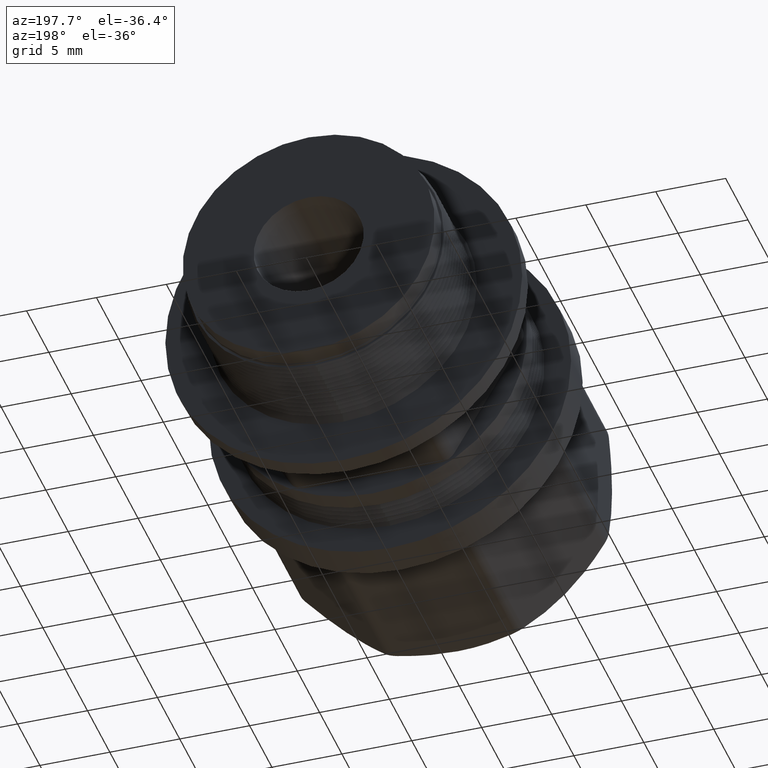
[diagram: clean part render]
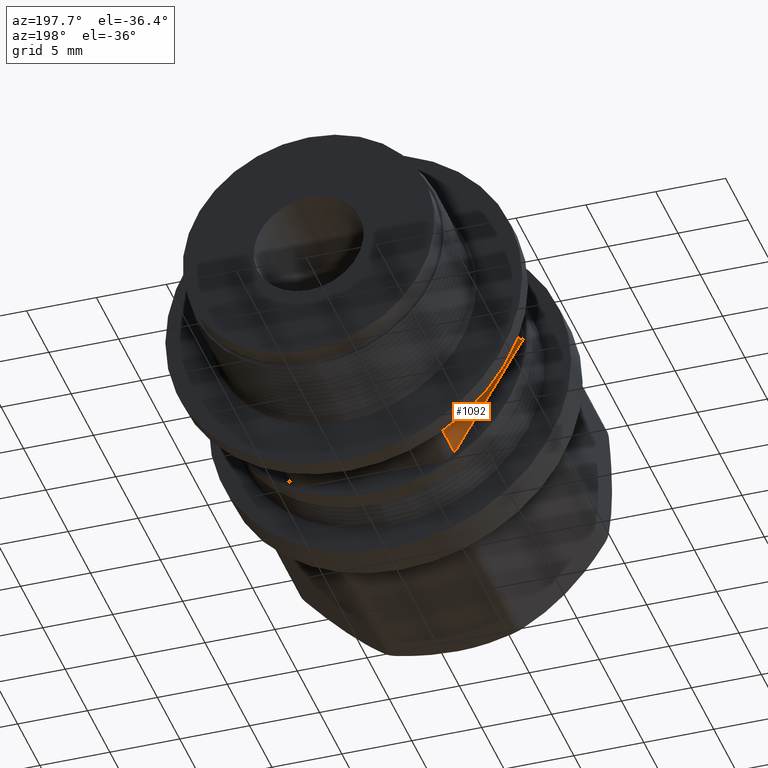
[diagram: same view with one face highlighted and labeled with its STEP entity id]
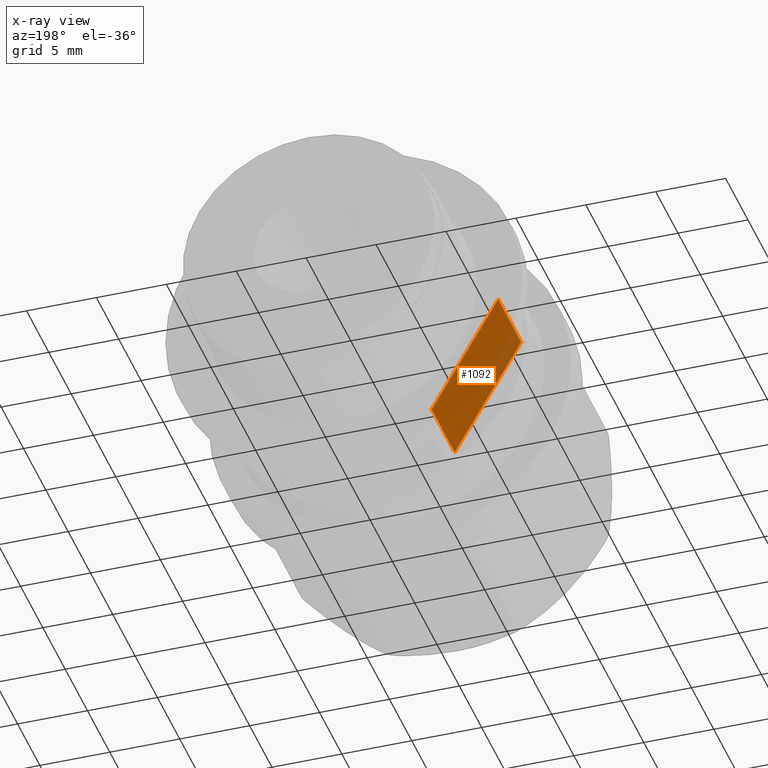
[diagram: x-ray of the same camera — body ghosted, the highlighted face saturated]
A machine part, auxiliary view. The second image highlights one B-rep face of the part: STEP entity #1092.
The next image is the same camera in x-ray: the body ghosted, the highlighted face saturated — about 17% of this face is hidden behind the body in this view.
In plain terms, the highlighted planar face has unit normal (-0.866, 0, -0.5).
Its self-contained STEP definition (entity closure, byte-faithful):
#1032 = EDGE_CURVE ( 'NONE', #1042, #1175, #3035, .T. ) ;
#1033 = VERTEX_POINT ( 'NONE', #3031 ) ;
#1042 = VERTEX_POINT ( 'NONE', #3182 ) ;
#1058 = EDGE_CURVE ( 'NONE', #1059, #1033, #3131, .T. ) ;
#1059 = VERTEX_POINT ( 'NONE', #3209 ) ;
#1092 = ADVANCED_FACE ( 'NONE', ( #3097 ), #3091, .T. ) ;
#1093 = EDGE_LOOP ( 'NONE', ( #1094, #1095, #1263, #1264 ) ) ;
#1094 = ORIENTED_EDGE ( 'NONE', *, *, #1032, .F. ) ;
#1095 = ORIENTED_EDGE ( 'NONE', *, *, #1096, .T. ) ;
#1096 = EDGE_CURVE ( 'NONE', #1042, #1059, #3086, .T. ) ;
#1175 = VERTEX_POINT ( 'NONE', #3364 ) ;
#1263 = ORIENTED_EDGE ( 'NONE', *, *, #1058, .T. ) ;
#1264 = ORIENTED_EDGE ( 'NONE', *, *, #1295, .T. ) ;
#1295 = EDGE_CURVE ( 'NONE', #1033, #1175, #3443, .T. ) ;
#3031 = CARTESIAN_POINT ( 'NONE',  ( -0.2309401076758504900, 0.9690000000000000800, -0.3499999999999999800 ) ) ;
#3032 = DIRECTION ( 'NONE',  ( 0.4999999999999998300, 0.0000000000000000000, -0.8660254037844388200 ) ) ;
#3033 = VECTOR ( 'NONE', #3032, 39.37007874015748100 ) ;
#3034 = CARTESIAN_POINT ( 'NONE',  ( -0.4330127018922194100, 0.7650000000000000100, 1.348292959726335600E-016 ) ) ;
#3035 = LINE ( 'NONE', #3034, #3033 ) ;
#3084 = VECTOR ( 'NONE', #3149, 39.37007874015748100 ) ;
#3085 = CARTESIAN_POINT ( 'NONE',  ( -0.4185789451624787300, 0.9690000000000000800, -0.02499999999999991100 ) ) ;
#3086 = LINE ( 'NONE', #3085, #3084 ) ;
#3087 = DIRECTION ( 'NONE',  ( -0.4999999999999998300, 0.0000000000000000000, 0.8660254037844388200 ) ) ;
#3088 = DIRECTION ( 'NONE',  ( -0.8660254037844388200, 0.0000000000000000000, -0.4999999999999998300 ) ) ;
#3089 = AXIS2_PLACEMENT_3D ( 'NONE', #3090, #3088, #3087 ) ;
#3090 = CARTESIAN_POINT ( 'NONE',  ( -0.4330127018922194100, 0.9690000000000000800, 1.348292959726335600E-016 ) ) ;
#3091 = PLANE ( 'NONE',  #3089 ) ;
#3097 = FACE_OUTER_BOUND ( 'NONE', #1093, .T. ) ;
#3129 = VECTOR ( 'NONE', #3210, 39.37007874015748100 ) ;
#3130 = CARTESIAN_POINT ( 'NONE',  ( -0.4330127018922194100, 0.9690000000000000800, 1.348292959726335600E-016 ) ) ;
#3131 = LINE ( 'NONE', #3130, #3129 ) ;
#3149 = DIRECTION ( 'NONE',  ( -0.0000000000000000000, 1.000000000000000000, -0.0000000000000000000 ) ) ;
#3182 = CARTESIAN_POINT ( 'NONE',  ( -0.4185789451624787300, 0.7650000000000000100, -0.02499999999999991100 ) ) ;
#3209 = CARTESIAN_POINT ( 'NONE',  ( -0.4185789451624787300, 0.9690000000000000800, -0.02499999999999991100 ) ) ;
#3210 = DIRECTION ( 'NONE',  ( 0.4999999999999998300, 0.0000000000000000000, -0.8660254037844388200 ) ) ;
#3364 = CARTESIAN_POINT ( 'NONE',  ( -0.2309401076758504900, 0.7650000000000000100, -0.3499999999999999800 ) ) ;
#3440 = DIRECTION ( 'NONE',  ( 0.0000000000000000000, -1.000000000000000000, 0.0000000000000000000 ) ) ;
#3441 = VECTOR ( 'NONE', #3440, 39.37007874015748100 ) ;
#3442 = CARTESIAN_POINT ( 'NONE',  ( -0.2309401076758504900, 0.9690000000000000800, -0.3499999999999999800 ) ) ;
#3443 = LINE ( 'NONE', #3442, #3441 ) ;